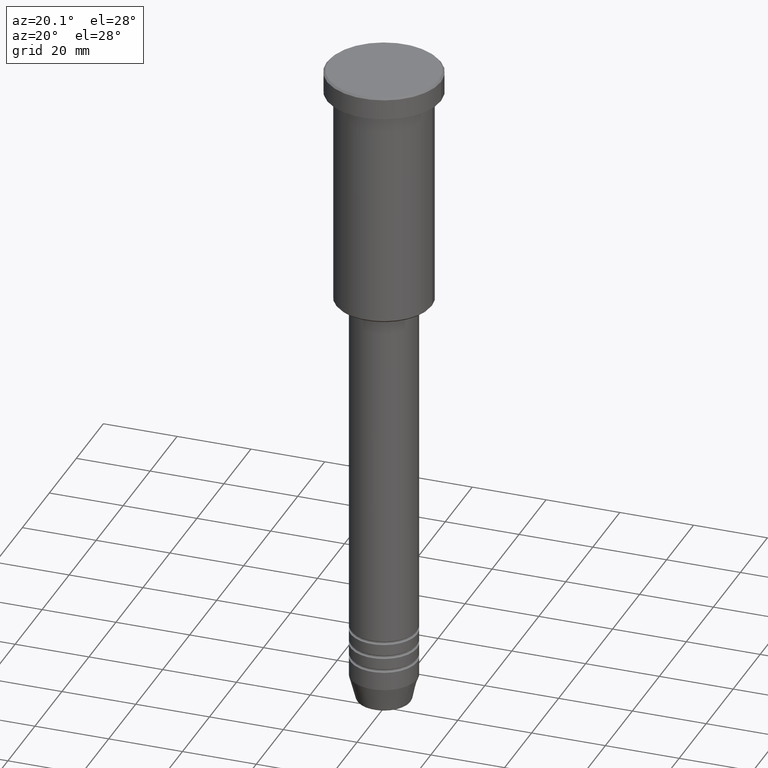
[diagram: clean part render]
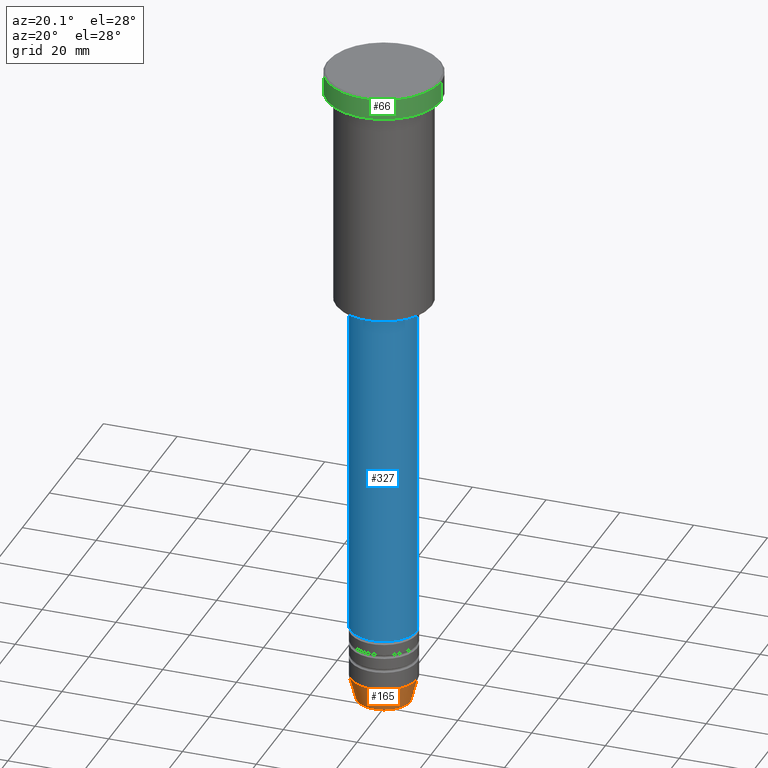
[diagram: same view with three faces highlighted in distinct colors, each labeled with its STEP entity id]
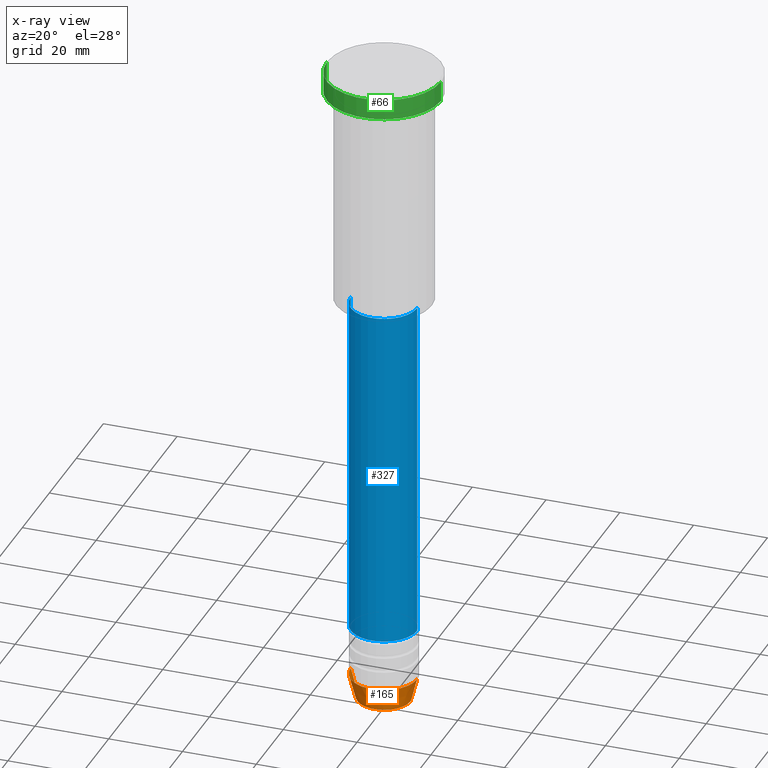
[diagram: x-ray of the same camera — body ghosted, the three highlighted faces saturated]
A machine part, auxiliary view with three faces highlighted in distinct colors.
The next image is the same camera in x-ray (body ghosted, the three faces saturated) — at least one of them is partly hidden behind the body in this view.
Their STEP definitions:

[orange] entity #165 — the highlighted conical surface has half-angle 15 deg.
#5 = EDGE_CURVE ( 'NONE', #92, #856, #679, .T. ) ;
#45 = AXIS2_PLACEMENT_3D ( 'NONE', #1020, #759, #387 ) ;
#49 = AXIS2_PLACEMENT_3D ( 'NONE', #1084, #711, #97 ) ;
#92 = VERTEX_POINT ( 'NONE', #1095 ) ;
#97 = DIRECTION ( 'NONE',  ( 1.000000000000000000, 0.000000000000000000, 0.000000000000000000 ) ) ;
#109 = ORIENTED_EDGE ( 'NONE', *, *, #252, .T. ) ;
#113 = CARTESIAN_POINT ( 'NONE',  ( 9.000000000000000000, 0.000000000000000000, -174.0000000000000000 ) ) ;
#124 = FACE_OUTER_BOUND ( 'NONE', #1158, .T. ) ;
#165 = ADVANCED_FACE ( 'NONE', ( #124 ), #1066, .T. ) ;
#252 = EDGE_CURVE ( 'NONE', #1099, #856, #849, .T. ) ;
#256 = VERTEX_POINT ( 'NONE', #582 ) ;
#285 = CARTESIAN_POINT ( 'NONE',  ( -9.000000000000000000, 1.102182119232617714E-15, -174.0000000000000000 ) ) ;
#314 = DIRECTION ( 'NONE',  ( 1.000000000000000000, 0.000000000000000000, 0.000000000000000000 ) ) ;
#378 = CARTESIAN_POINT ( 'NONE',  ( 9.000000000000000000, 0.000000000000000000, -174.0000000000000000 ) ) ;
#387 = DIRECTION ( 'NONE',  ( 1.000000000000000000, 0.000000000000000000, 0.000000000000000000 ) ) ;
#402 = ORIENTED_EDGE ( 'NONE', *, *, #5, .F. ) ;
#416 = AXIS2_PLACEMENT_3D ( 'NONE', #937, #852, #314 ) ;
#432 = VECTOR ( 'NONE', #809, 1000.000000000000000 ) ;
#582 = CARTESIAN_POINT ( 'NONE',  ( -7.223655072137189492, 9.934123627281765110E-16, -180.6294095225512706 ) ) ;
#679 = CIRCLE ( 'NONE', #49, 9.000000000000000000 ) ;
#711 = DIRECTION ( 'NONE',  ( -0.000000000000000000, -0.000000000000000000, 1.000000000000000000 ) ) ;
#725 = EDGE_CURVE ( 'NONE', #256, #92, #727, .T. ) ;
#727 = LINE ( 'NONE', #285, #432 ) ;
#759 = DIRECTION ( 'NONE',  ( -0.000000000000000000, -0.000000000000000000, 1.000000000000000000 ) ) ;
#779 = ORIENTED_EDGE ( 'NONE', *, *, #916, .T. ) ;
#809 = DIRECTION ( 'NONE',  ( -0.2588190451025213501, 3.169619151431772337E-17, 0.9659258262890680902 ) ) ;
#849 = LINE ( 'NONE', #113, #1090 ) ;
#852 = DIRECTION ( 'NONE',  ( -0.000000000000000000, -0.000000000000000000, 1.000000000000000000 ) ) ;
#856 = VERTEX_POINT ( 'NONE', #378 ) ;
#916 = EDGE_CURVE ( 'NONE', #256, #1099, #921, .T. ) ;
#921 = CIRCLE ( 'NONE', #416, 7.223655072137188604 ) ;
#937 = CARTESIAN_POINT ( 'NONE',  ( 0.000000000000000000, 0.000000000000000000, -180.6294095225512706 ) ) ;
#977 = ORIENTED_EDGE ( 'NONE', *, *, #725, .F. ) ;
#1020 = CARTESIAN_POINT ( 'NONE',  ( 0.000000000000000000, 0.000000000000000000, -174.0000000000000000 ) ) ;
#1066 = CONICAL_SURFACE ( 'NONE', #45, 9.000000000000000000, 0.2617993877991500740 ) ;
#1084 = CARTESIAN_POINT ( 'NONE',  ( 0.000000000000000000, 0.000000000000000000, -174.0000000000000000 ) ) ;
#1090 = VECTOR ( 'NONE', #1126, 1000.000000000000000 ) ;
#1095 = CARTESIAN_POINT ( 'NONE',  ( -9.000000000000000000, 1.102182119232617714E-15, -174.0000000000000000 ) ) ;
#1099 = VERTEX_POINT ( 'NONE', #1153 ) ;
#1126 = DIRECTION ( 'NONE',  ( 0.2588190451025213501, 0.000000000000000000, 0.9659258262890680902 ) ) ;
#1153 = CARTESIAN_POINT ( 'NONE',  ( 7.223655072137188604, 0.000000000000000000, -180.6294095225512706 ) ) ;
#1158 = EDGE_LOOP ( 'NONE', ( #977, #779, #109, #402 ) ) ;

[blue] entity #327 — the highlighted cylindrical surface (edge-blend (fillet) strip) has radius 9 mm, axis along (-0, -0, 1).
#19 = DIRECTION ( 'NONE',  ( -0.000000000000000000, -0.000000000000000000, 1.000000000000000000 ) ) ;
#26 = ORIENTED_EDGE ( 'NONE', *, *, #143, .F. ) ;
#47 = DIRECTION ( 'NONE',  ( 1.000000000000000000, 0.000000000000000000, 0.000000000000000000 ) ) ;
#64 = AXIS2_PLACEMENT_3D ( 'NONE', #605, #427, #47 ) ;
#87 = EDGE_CURVE ( 'NONE', #152, #1106, #275, .T. ) ;
#104 = CIRCLE ( 'NONE', #410, 8.999999999999998224 ) ;
#119 = DIRECTION ( 'NONE',  ( 1.000000000000000000, 0.000000000000000000, 0.000000000000000000 ) ) ;
#143 = EDGE_CURVE ( 'NONE', #180, #924, #1005, .T. ) ;
#152 = VERTEX_POINT ( 'NONE', #403 ) ;
#180 = VERTEX_POINT ( 'NONE', #213 ) ;
#197 = CARTESIAN_POINT ( 'NONE',  ( 0.000000000000000000, 0.000000000000000000, -66.99999999999997158 ) ) ;
#206 = EDGE_CURVE ( 'NONE', #924, #1106, #104, .T. ) ;
#213 = CARTESIAN_POINT ( 'NONE',  ( -9.000000000000001776, 1.102182119232617911E-15, -159.9999999999998579 ) ) ;
#219 = DIRECTION ( 'NONE',  ( -0.000000000000000000, -0.000000000000000000, 1.000000000000000000 ) ) ;
#222 = CARTESIAN_POINT ( 'NONE',  ( 0.000000000000000000, 0.000000000000000000, -159.9999999999998579 ) ) ;
#275 = LINE ( 'NONE', #992, #319 ) ;
#304 = CARTESIAN_POINT ( 'NONE',  ( -8.999999999999998224, 1.102182119232617714E-15, -66.99999999999997158 ) ) ;
#319 = VECTOR ( 'NONE', #804, 1000.000000000000000 ) ;
#327 = ADVANCED_FACE ( 'NONE', ( #1045 ), #514, .T. ) ;
#403 = CARTESIAN_POINT ( 'NONE',  ( 9.000000000000001776, 0.000000000000000000, -159.9999999999998579 ) ) ;
#410 = AXIS2_PLACEMENT_3D ( 'NONE', #197, #1011, #119 ) ;
#427 = DIRECTION ( 'NONE',  ( -0.000000000000000000, -0.000000000000000000, 1.000000000000000000 ) ) ;
#433 = CIRCLE ( 'NONE', #621, 9.000000000000001776 ) ;
#514 = CYLINDRICAL_SURFACE ( 'NONE', #64, 9.000000000000000000 ) ;
#530 = ORIENTED_EDGE ( 'NONE', *, *, #87, .T. ) ;
#557 = VECTOR ( 'NONE', #219, 1000.000000000000000 ) ;
#562 = EDGE_LOOP ( 'NONE', ( #26, #653, #530, #594 ) ) ;
#594 = ORIENTED_EDGE ( 'NONE', *, *, #206, .F. ) ;
#605 = CARTESIAN_POINT ( 'NONE',  ( 0.000000000000000000, 0.000000000000000000, 0.000000000000000000 ) ) ;
#621 = AXIS2_PLACEMENT_3D ( 'NONE', #222, #19, #1125 ) ;
#653 = ORIENTED_EDGE ( 'NONE', *, *, #881, .T. ) ;
#738 = CARTESIAN_POINT ( 'NONE',  ( -9.000000000000000000, 1.102182119232617714E-15, 0.000000000000000000 ) ) ;
#804 = DIRECTION ( 'NONE',  ( -0.000000000000000000, -0.000000000000000000, 1.000000000000000000 ) ) ;
#881 = EDGE_CURVE ( 'NONE', #180, #152, #433, .T. ) ;
#924 = VERTEX_POINT ( 'NONE', #304 ) ;
#953 = CARTESIAN_POINT ( 'NONE',  ( 8.999999999999998224, 0.000000000000000000, -66.99999999999997158 ) ) ;
#992 = CARTESIAN_POINT ( 'NONE',  ( 9.000000000000000000, 0.000000000000000000, 0.000000000000000000 ) ) ;
#1005 = LINE ( 'NONE', #738, #557 ) ;
#1011 = DIRECTION ( 'NONE',  ( -0.000000000000000000, -0.000000000000000000, 1.000000000000000000 ) ) ;
#1045 = FACE_OUTER_BOUND ( 'NONE', #562, .T. ) ;
#1106 = VERTEX_POINT ( 'NONE', #953 ) ;
#1125 = DIRECTION ( 'NONE',  ( 1.000000000000000000, 0.000000000000000000, 0.000000000000000000 ) ) ;

[green] entity #66 — the highlighted cylindrical surface (partial cylindrical patch) has radius 15.5 mm, axis along (-0, -0, 1).
#6 = ORIENTED_EDGE ( 'NONE', *, *, #173, .T. ) ;
#29 = DIRECTION ( 'NONE',  ( -0.000000000000000000, -0.000000000000000000, 1.000000000000000000 ) ) ;
#48 = ORIENTED_EDGE ( 'NONE', *, *, #240, .T. ) ;
#66 = ADVANCED_FACE ( 'NONE', ( #908 ), #77, .T. ) ;
#73 = CARTESIAN_POINT ( 'NONE',  ( -15.50000000000000000, 1.898202538678397557E-15, -5.999999999999995559 ) ) ;
#77 = CYLINDRICAL_SURFACE ( 'NONE', #1096, 15.50000000000000000 ) ;
#105 = VERTEX_POINT ( 'NONE', #705 ) ;
#108 = CARTESIAN_POINT ( 'NONE',  ( 15.50000000000000000, 0.000000000000000000, 0.000000000000000000 ) ) ;
#172 = CARTESIAN_POINT ( 'NONE',  ( 0.000000000000000000, 0.000000000000000000, 0.000000000000000000 ) ) ;
#173 = EDGE_CURVE ( 'NONE', #1177, #105, #1130, .T. ) ;
#198 = VECTOR ( 'NONE', #488, 1000.000000000000000 ) ;
#203 = DIRECTION ( 'NONE',  ( 1.000000000000000000, 0.000000000000000000, 0.000000000000000000 ) ) ;
#224 = CARTESIAN_POINT ( 'NONE',  ( 0.000000000000000000, 0.000000000000000000, -0.5000000000000125455 ) ) ;
#235 = EDGE_CURVE ( 'NONE', #812, #888, #1148, .T. ) ;
#240 = EDGE_CURVE ( 'NONE', #105, #812, #579, .T. ) ;
#379 = EDGE_CURVE ( 'NONE', #1177, #888, #950, .T. ) ;
#486 = EDGE_LOOP ( 'NONE', ( #490, #6, #48, #1183 ) ) ;
#488 = DIRECTION ( 'NONE',  ( -0.000000000000000000, -0.000000000000000000, 1.000000000000000000 ) ) ;
#490 = ORIENTED_EDGE ( 'NONE', *, *, #379, .F. ) ;
#493 = CARTESIAN_POINT ( 'NONE',  ( 0.000000000000000000, 0.000000000000000000, -5.999999999999995559 ) ) ;
#531 = CARTESIAN_POINT ( 'NONE',  ( 15.50000000000000000, 0.000000000000000000, -0.5000000000000125455 ) ) ;
#579 = LINE ( 'NONE', #108, #198 ) ;
#655 = VECTOR ( 'NONE', #955, 1000.000000000000000 ) ;
#705 = CARTESIAN_POINT ( 'NONE',  ( 15.50000000000000000, 0.000000000000000000, -5.999999999999995559 ) ) ;
#764 = AXIS2_PLACEMENT_3D ( 'NONE', #224, #923, #836 ) ;
#812 = VERTEX_POINT ( 'NONE', #531 ) ;
#836 = DIRECTION ( 'NONE',  ( 1.000000000000000000, 0.000000000000000000, 0.000000000000000000 ) ) ;
#858 = AXIS2_PLACEMENT_3D ( 'NONE', #493, #29, #203 ) ;
#888 = VERTEX_POINT ( 'NONE', #1007 ) ;
#891 = DIRECTION ( 'NONE',  ( 1.000000000000000000, 0.000000000000000000, 0.000000000000000000 ) ) ;
#908 = FACE_OUTER_BOUND ( 'NONE', #486, .T. ) ;
#923 = DIRECTION ( 'NONE',  ( 0.000000000000000000, 0.000000000000000000, -1.000000000000000000 ) ) ;
#950 = LINE ( 'NONE', #1144, #655 ) ;
#955 = DIRECTION ( 'NONE',  ( -0.000000000000000000, -0.000000000000000000, 1.000000000000000000 ) ) ;
#1007 = CARTESIAN_POINT ( 'NONE',  ( -15.50000000000000000, 1.898202538678397557E-15, -0.5000000000000125455 ) ) ;
#1096 = AXIS2_PLACEMENT_3D ( 'NONE', #172, #1181, #891 ) ;
#1130 = CIRCLE ( 'NONE', #858, 15.50000000000000000 ) ;
#1144 = CARTESIAN_POINT ( 'NONE',  ( -15.50000000000000000, 1.898202538678397557E-15, 0.000000000000000000 ) ) ;
#1148 = CIRCLE ( 'NONE', #764, 15.50000000000000000 ) ;
#1177 = VERTEX_POINT ( 'NONE', #73 ) ;
#1181 = DIRECTION ( 'NONE',  ( -0.000000000000000000, -0.000000000000000000, 1.000000000000000000 ) ) ;
#1183 = ORIENTED_EDGE ( 'NONE', *, *, #235, .T. ) ;